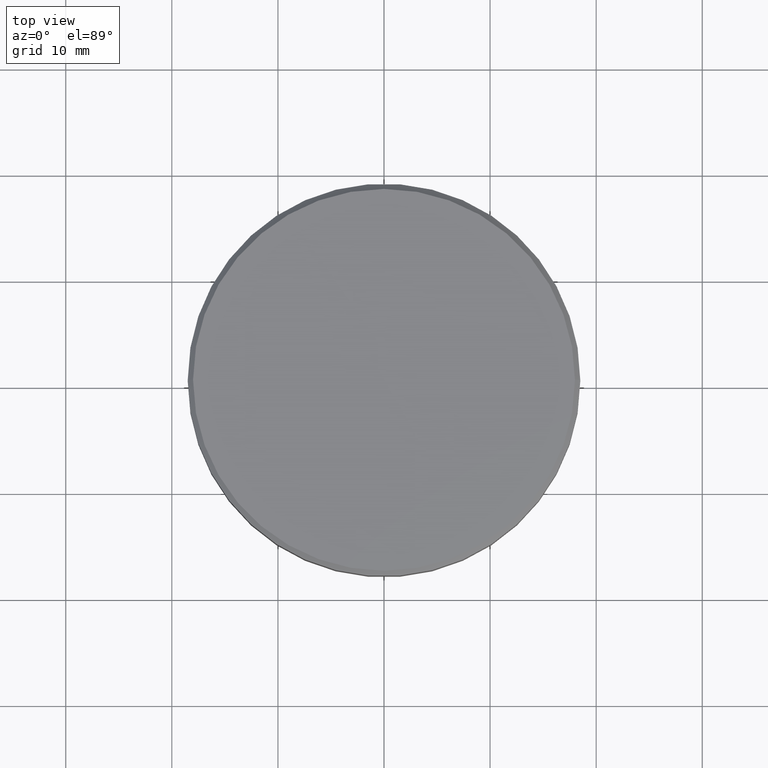
[diagram: clean part render]
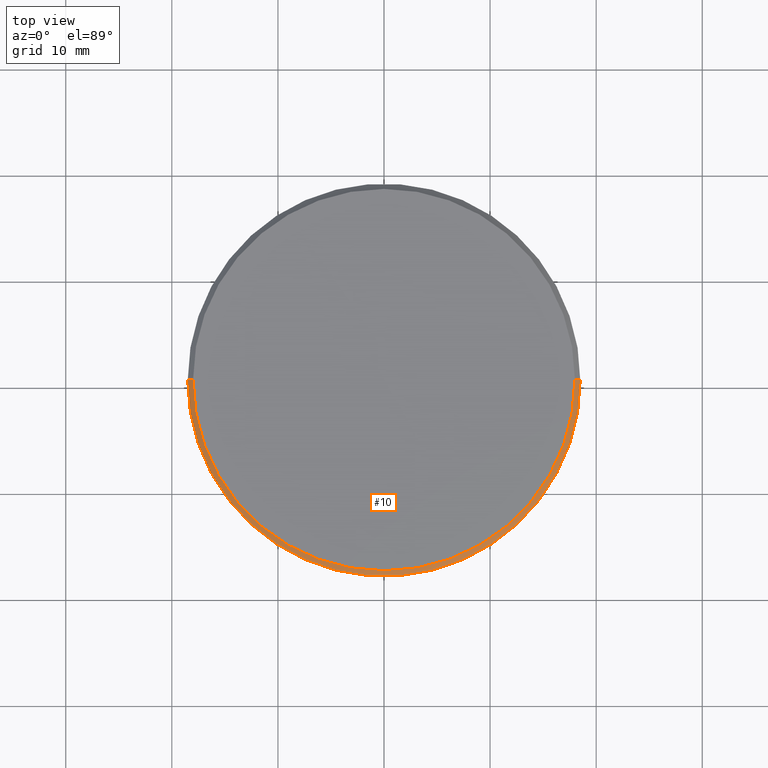
[diagram: same view with one face highlighted and labeled with its STEP entity id]
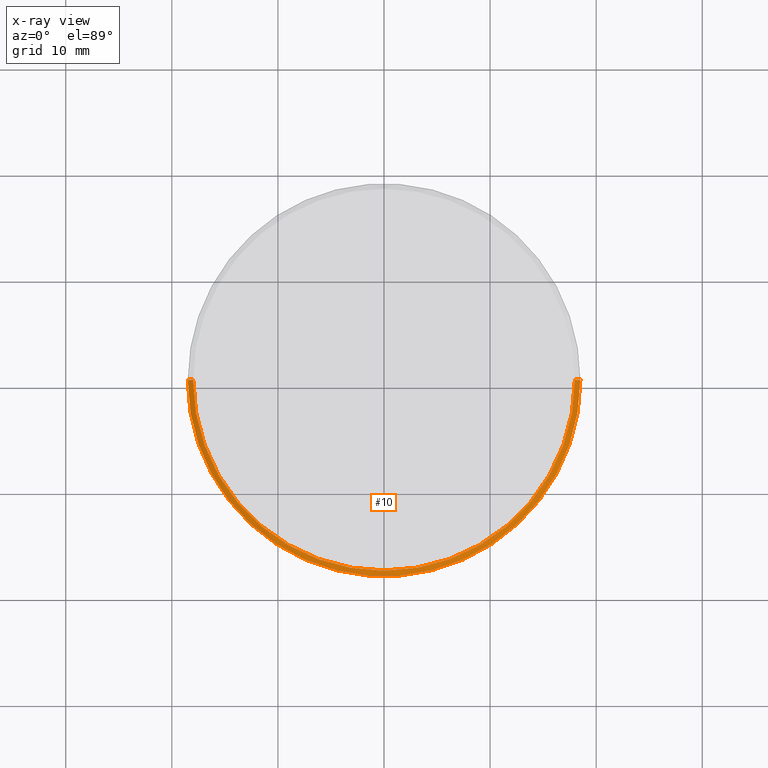
[diagram: x-ray of the same camera — body ghosted, the highlighted face saturated]
A machine part, top view. The second image highlights one B-rep face of the part: STEP entity #10.
The next image is the same camera in x-ray: the body ghosted, the highlighted face saturated — about 0% of this face is hidden behind the body in this view.
In plain terms, the highlighted conical surface has half-angle 45 deg.
Its self-contained STEP definition (entity closure, byte-faithful):
#4 = EDGE_CURVE ( 'NONE', #241, #176, #19, .T. ) ;
#7 = ORIENTED_EDGE ( 'NONE', *, *, #4, .F. ) ;
#10 = ADVANCED_FACE ( 'NONE', ( #231 ), #34, .T. ) ;
#15 = CARTESIAN_POINT ( 'NONE',  ( -18.00000000000001066, 0.000000000000000000, 0.000000000000000000 ) ) ;
#19 = LINE ( 'NONE', #84, #355 ) ;
#34 = CONICAL_SURFACE ( 'NONE', #225, 18.00000000000001066, 0.7853981633974517207 ) ;
#43 = DIRECTION ( 'NONE',  ( 1.000000000000000000, 0.000000000000000000, 0.000000000000000000 ) ) ;
#45 = DIRECTION ( 'NONE',  ( -0.000000000000000000, -0.000000000000000000, 1.000000000000000000 ) ) ;
#58 = VERTEX_POINT ( 'NONE', #306 ) ;
#74 = AXIS2_PLACEMENT_3D ( 'NONE', #75, #45, #171 ) ;
#75 = CARTESIAN_POINT ( 'NONE',  ( 0.000000000000000000, 0.000000000000000000, 0.000000000000000000 ) ) ;
#76 = CARTESIAN_POINT ( 'NONE',  ( 18.00000000000001066, 2.234980408443920004E-15, 0.000000000000000000 ) ) ;
#83 = ORIENTED_EDGE ( 'NONE', *, *, #382, .F. ) ;
#84 = CARTESIAN_POINT ( 'NONE',  ( 18.00000000000001066, 2.204364238465237006E-15, 0.000000000000000000 ) ) ;
#135 = VERTEX_POINT ( 'NONE', #318 ) ;
#137 = VECTOR ( 'NONE', #145, 1000.000000000000114 ) ;
#140 = EDGE_CURVE ( 'NONE', #176, #135, #365, .T. ) ;
#145 = DIRECTION ( 'NONE',  ( -0.7071067811865500152, 0.000000000000000000, -0.7071067811865451302 ) ) ;
#147 = CARTESIAN_POINT ( 'NONE',  ( 0.000000000000000000, 0.000000000000000000, 0.000000000000000000 ) ) ;
#165 = CARTESIAN_POINT ( 'NONE',  ( 0.000000000000000000, 0.000000000000000000, -0.4999999999999865663 ) ) ;
#169 = ORIENTED_EDGE ( 'NONE', *, *, #270, .T. ) ;
#170 = DIRECTION ( 'NONE',  ( 0.7071067811865500152, 8.659560562354962440E-17, -0.7071067811865451302 ) ) ;
#171 = DIRECTION ( 'NONE',  ( 1.000000000000000000, 0.000000000000000000, 0.000000000000000000 ) ) ;
#176 = VERTEX_POINT ( 'NONE', #216 ) ;
#209 = ORIENTED_EDGE ( 'NONE', *, *, #140, .F. ) ;
#216 = CARTESIAN_POINT ( 'NONE',  ( 18.50000000000000000, 0.000000000000000000, -0.4999999999999865663 ) ) ;
#225 = AXIS2_PLACEMENT_3D ( 'NONE', #147, #302, #386 ) ;
#231 = FACE_OUTER_BOUND ( 'NONE', #297, .T. ) ;
#241 = VERTEX_POINT ( 'NONE', #76 ) ;
#270 = EDGE_CURVE ( 'NONE', #58, #135, #394, .T. ) ;
#293 = CIRCLE ( 'NONE', #74, 18.00000000000001066 ) ;
#297 = EDGE_LOOP ( 'NONE', ( #7, #83, #169, #209 ) ) ;
#302 = DIRECTION ( 'NONE',  ( 0.000000000000000000, 0.000000000000000000, -1.000000000000000000 ) ) ;
#306 = CARTESIAN_POINT ( 'NONE',  ( -18.00000000000001066, 0.000000000000000000, 0.000000000000000000 ) ) ;
#318 = CARTESIAN_POINT ( 'NONE',  ( -18.50000000000000000, 2.265596578422603396E-15, -0.4999999999999865663 ) ) ;
#344 = AXIS2_PLACEMENT_3D ( 'NONE', #165, #371, #43 ) ;
#355 = VECTOR ( 'NONE', #170, 1000.000000000000114 ) ;
#365 = CIRCLE ( 'NONE', #344, 18.50000000000000000 ) ;
#371 = DIRECTION ( 'NONE',  ( 0.000000000000000000, 0.000000000000000000, -1.000000000000000000 ) ) ;
#382 = EDGE_CURVE ( 'NONE', #58, #241, #293, .T. ) ;
#386 = DIRECTION ( 'NONE',  ( -1.000000000000000000, 0.000000000000000000, 0.000000000000000000 ) ) ;
#394 = LINE ( 'NONE', #15, #137 ) ;